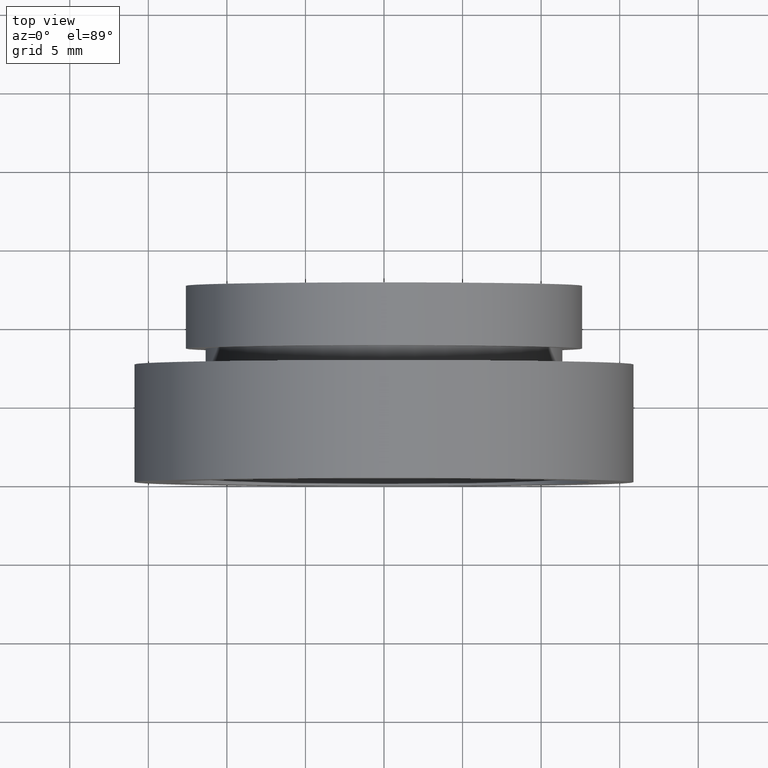
[diagram: clean part render]
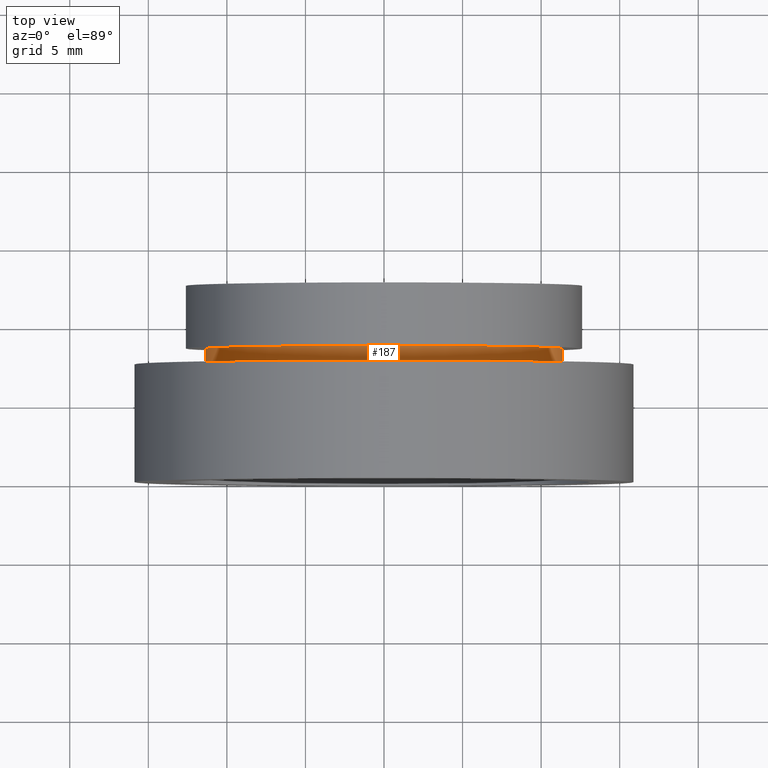
[diagram: same view with one face highlighted and labeled with its STEP entity id]
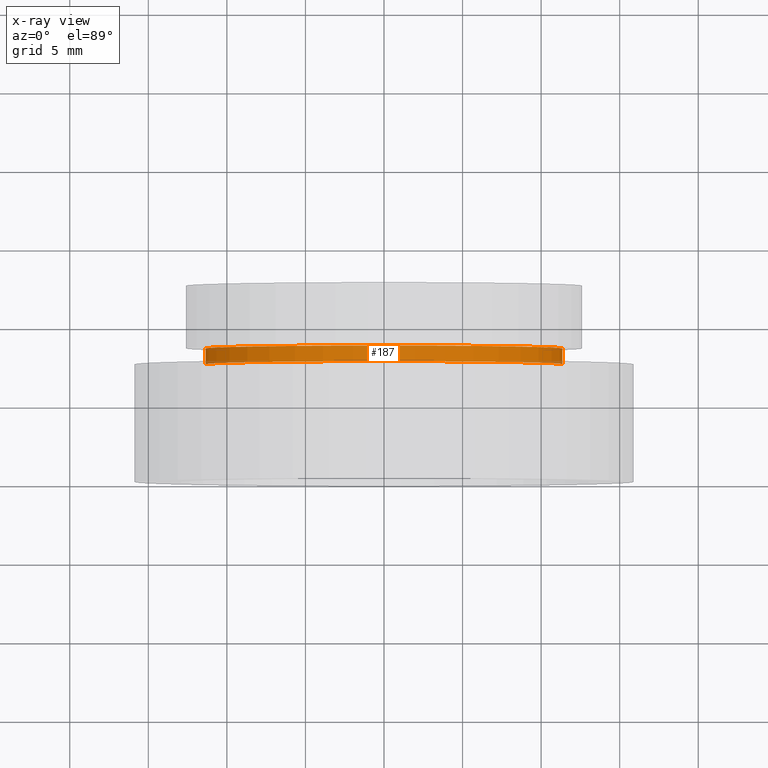
[diagram: x-ray of the same camera — body ghosted, the highlighted face saturated]
A machine part, top view. The second image highlights one B-rep face of the part: STEP entity #187.
The next image is the same camera in x-ray: the body ghosted, the highlighted face saturated — about 4% of this face is hidden behind the body in this view.
In plain terms, the highlighted cylindrical surface (partial cylindrical patch) has radius 11.35 mm, axis along (-0, 1, -0).
Its self-contained STEP definition (entity closure, byte-faithful):
#24 = DIRECTION ( 'NONE',  ( -1.000000000000000000, -1.528390727732869900E-016, 0.0000000000000000000 ) ) ;
#38 = EDGE_CURVE ( 'NONE', #392, #189, #133, .T. ) ;
#44 = CARTESIAN_POINT ( 'NONE',  ( 11.35000000000000100, 8.500000000000000000, 1.389974117032245900E-015 ) ) ;
#63 = CARTESIAN_POINT ( 'NONE',  ( 11.35000000000000100, 7.500000000000000000, 1.389974117032245900E-015 ) ) ;
#68 = VECTOR ( 'NONE', #530, 1000.000000000000000 ) ;
#97 = EDGE_CURVE ( 'NONE', #189, #124, #233, .T. ) ;
#105 = EDGE_LOOP ( 'NONE', ( #215, #323, #381, #355 ) ) ;
#124 = VERTEX_POINT ( 'NONE', #44 ) ;
#133 = LINE ( 'NONE', #185, #352 ) ;
#149 = DIRECTION ( 'NONE',  ( -1.224646799147351000E-016, 1.000000000000000000, -0.0000000000000000000 ) ) ;
#155 = FACE_OUTER_BOUND ( 'NONE', #105, .T. ) ;
#185 = CARTESIAN_POINT ( 'NONE',  ( -11.35000000000000000, 16.88601823708207700, 0.0000000000000000000 ) ) ;
#187 = ADVANCED_FACE ( 'NONE', ( #155 ), #416, .T. ) ;
#189 = VERTEX_POINT ( 'NONE', #496 ) ;
#215 = ORIENTED_EDGE ( 'NONE', *, *, #599, .T. ) ;
#227 = AXIS2_PLACEMENT_3D ( 'NONE', #364, #319, #24 ) ;
#233 = CIRCLE ( 'NONE', #459, 11.35000000000000000 ) ;
#253 = AXIS2_PLACEMENT_3D ( 'NONE', #623, #149, #299 ) ;
#299 = DIRECTION ( 'NONE',  ( -1.000000000000000000, 0.0000000000000000000, 0.0000000000000000000 ) ) ;
#319 = DIRECTION ( 'NONE',  ( -1.224646799147351000E-016, 1.000000000000000000, -0.0000000000000000000 ) ) ;
#323 = ORIENTED_EDGE ( 'NONE', *, *, #379, .T. ) ;
#346 = DIRECTION ( 'NONE',  ( -1.000000000000000000, -1.528390727732869900E-016, 0.0000000000000000000 ) ) ;
#352 = VECTOR ( 'NONE', #382, 1000.000000000000000 ) ;
#355 = ORIENTED_EDGE ( 'NONE', *, *, #38, .F. ) ;
#364 = CARTESIAN_POINT ( 'NONE',  ( 1.149455719078122700E-015, 7.499999999999998200, 0.0000000000000000000 ) ) ;
#379 = EDGE_CURVE ( 'NONE', #558, #124, #591, .T. ) ;
#381 = ORIENTED_EDGE ( 'NONE', *, *, #97, .F. ) ;
#382 = DIRECTION ( 'NONE',  ( -1.224646799147351000E-016, 1.000000000000000000, -0.0000000000000000000 ) ) ;
#392 = VERTEX_POINT ( 'NONE', #533 ) ;
#416 = CYLINDRICAL_SURFACE ( 'NONE', #253, 11.35000000000000000 ) ;
#459 = AXIS2_PLACEMENT_3D ( 'NONE', #575, #490, #346 ) ;
#490 = DIRECTION ( 'NONE',  ( -1.224646799147351000E-016, 1.000000000000000000, -0.0000000000000000000 ) ) ;
#496 = CARTESIAN_POINT ( 'NONE',  ( -11.34999999999999800, 8.499999999999996400, 0.0000000000000000000 ) ) ;
#530 = DIRECTION ( 'NONE',  ( -1.224646799147351000E-016, 1.000000000000000000, -0.0000000000000000000 ) ) ;
#533 = CARTESIAN_POINT ( 'NONE',  ( -11.34999999999999800, 7.499999999999996400, 0.0000000000000000000 ) ) ;
#558 = VERTEX_POINT ( 'NONE', #63 ) ;
#575 = CARTESIAN_POINT ( 'NONE',  ( 1.026991039163387700E-015, 8.499999999999998200, 0.0000000000000000000 ) ) ;
#580 = CARTESIAN_POINT ( 'NONE',  ( 11.35000000000000000, 16.88601823708207700, 1.389974117032245900E-015 ) ) ;
#591 = LINE ( 'NONE', #580, #68 ) ;
#599 = EDGE_CURVE ( 'NONE', #392, #558, #615, .T. ) ;
#615 = CIRCLE ( 'NONE', #227, 11.35000000000000000 ) ;
#623 = CARTESIAN_POINT ( 'NONE',  ( 0.0000000000000000000, 16.88601823708207700, 0.0000000000000000000 ) ) ;